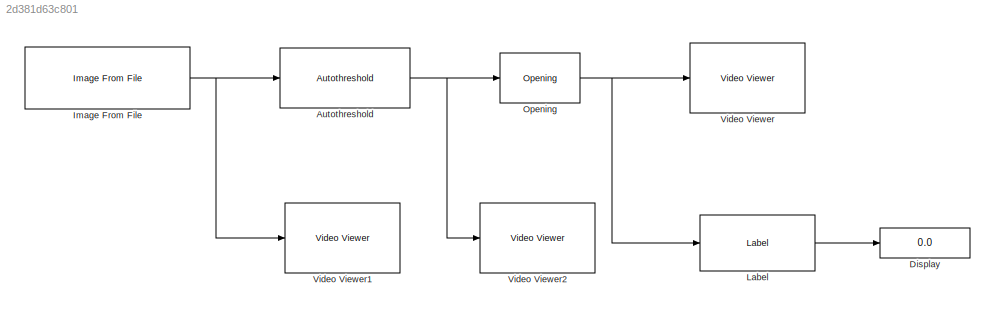
MODEL slx_2d381d63c801
KIND model
BLOCK [Reference] Autothreshold  REF=visionconversions/Autothreshold
  A1FracLength = 30
  A1Mode = Same as Product 1
  A1WordLength = 32
  A2FracLength = 22
  A2Mode = Same as Product 2
  A2WordLength = 32
  A3FracLength = 14
  A3Mode = Same as Product 3
  A3WordLength = 32
  A4FracLength = 4
  A4Mode = Same as Product 4
  A4WordLength = 16
  EMFracLength = 14
  EMMode = Specify word length
  EMWordLength = 16
  LockScale = off
  P1FracLength = 30
  P1Mode = Specify word length
  P1WordLength = 32
  P2FracLength = 22
  P2Mode = Specify word length
  P2WordLength = 32
  P3FracLength = 14
  P3Mode = Specify word length
  P3WordLength = 32
  P4FracLength = 15
  P4Mode = Binary point scaling
  P4WordLength = 32
  Ports = [1, 1]
  Q1FracLength = 16
  Q1Mode = Specify word length
  Q1WordLength = 32
  SourceBlock = visionconversions/Autothreshold
  SourceType = Autothreshold
  effMetricOut = off
  operator = >
  outOfRngOpt = Warn and saturate
  overflowMode = off
  roundingMode = Floor
  scaleFactor = 0.9
  scaleThreshold = on
  threshOut = off
  umax = 255
  umin = 0
  userDefinedRange = off
BLOCK [Display] Display
  Decimation = 1
  Ports = [1]
BLOCK [Reference] Image From File  REF=visionsources/Image From File
  FileName = coins.png
  FractionLength = 15
  FractionLengthMode = User-defined
  ImageDataType = Inherit from input image
  OutPortLabels = R|G|B
  Ports = [0, 1]
  Signed = on
  SourceBlock = visionsources/Image From File
  SourceType = Image From File
  Tag = vipblks_nd
  Ts = inf
  WordLength = 16
  imagePorts = One multidimensional signal
  sdImageDataType = uint(8)
BLOCK [Reference] Label  REF=visionmorphops/Label
  Ports = [1, 1]
  SourceBlock = visionmorphops/Label
  SourceType = Label
  conn = 8
  lastLabel = maximum value of the output data type
  outType = Automatic
  output = Number of labels
BLOCK [Reference] Opening  REF=visionmorphops/Opening
  Ports = [1, 1]
  SourceBlock = visionmorphops/Opening
  SourceType = Opening
  nhoodsrc = Specify via dialog
  strel = strel('disk',5)
BLOCK [Reference] Video Viewer  REF=visionsinks/Video Viewer
  AxisZoom = on
  DefaultConfigurationName = vipscopes.VideoViewerScopeCfg
  FigPos = [535 698 410 337]
  OpenAtMdlStart = on
  Ports = [1]
  SourceBlock = visionsinks/Video Viewer
  SourceType = Video Viewer
  UserDataPersistent = on
  colormapValue = gray(256)
  imagePorts = One multidimensional signal
  inputType = Obsolete7b
  maxInputVal = 255
  minInputVal = 0
  specRange = off
  trueSizedOnce = off
  useColorMap = off
BLOCK [Reference] Video Viewer1  REF=visionsinks/Video Viewer
  AxisZoom = on
  DefaultConfigurationName = vipscopes.VideoViewerScopeCfg
  FigPos = [144 709 410 337]
  OpenAtMdlStart = on
  Ports = [1]
  SourceBlock = visionsinks/Video Viewer
  SourceType = Video Viewer
  UserDataPersistent = on
  colormapValue = gray(256)
  imagePorts = One multidimensional signal
  inputType = Obsolete7b
  maxInputVal = 255
  minInputVal = 0
  specRange = off
  trueSizedOnce = off
  useColorMap = off
BLOCK [Reference] Video Viewer2  REF=visionsinks/Video Viewer
  AxisZoom = on
  DefaultConfigurationName = vipscopes.VideoViewerScopeCfg
  FigPos = [917 708 410 337]
  OpenAtMdlStart = on
  Ports = [1]
  SourceBlock = visionsinks/Video Viewer
  SourceType = Video Viewer
  UserDataPersistent = on
  colormapValue = gray(256)
  imagePorts = One multidimensional signal
  inputType = Obsolete7b
  maxInputVal = 255
  minInputVal = 0
  specRange = off
  trueSizedOnce = off
  useColorMap = off
NET Autothreshold:1 -> Opening:1, Video Viewer2:1
NET Image From File:1 -> Autothreshold:1, Video Viewer1:1
LINE Label:1 -> Display:1
NET Opening:1 -> Label:1, Video Viewer:1
note: NET lines group one-source signal fan-out (src -> all destinations, sorted); 1:1 wires keep LINE
